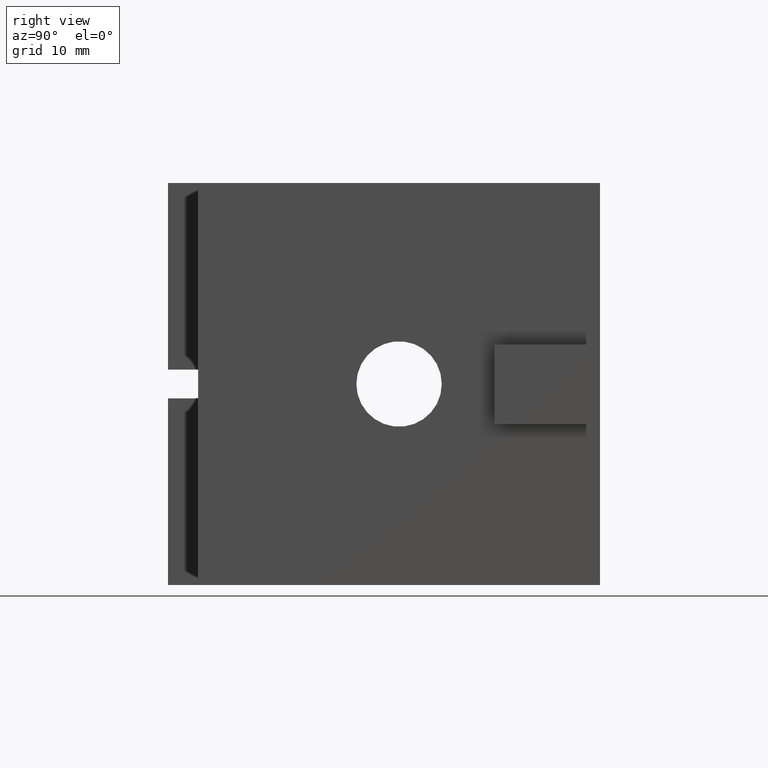
[diagram: clean part render]
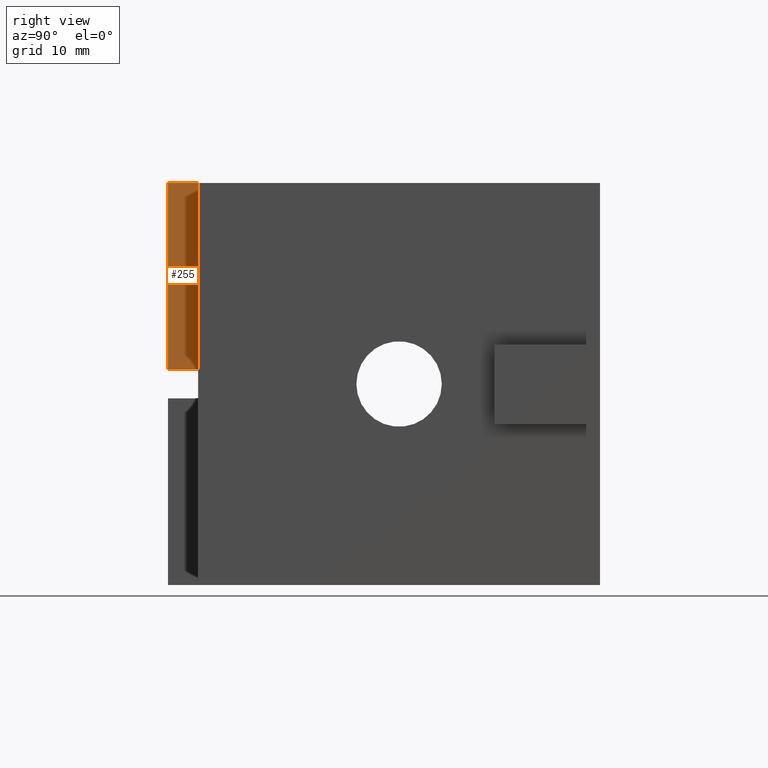
[diagram: same view with one face highlighted and labeled with its STEP entity id]
A machine part, right view. The second image highlights one B-rep face of the part: STEP entity #255.
In plain terms, the highlighted planar face has unit normal (1, 0, 0).
Its self-contained STEP definition (entity closure, byte-faithful):
#168=CARTESIAN_POINT('',(3.999999111983840,-22.999999333988058,21.436135902726068));
#169=VERTEX_POINT('',#168);
#177=CARTESIAN_POINT('',(3.999999111983840,-22.999999333988058,39.999989209840351));
#178=VERTEX_POINT('',#177);
#179=CARTESIAN_POINT('',(3.999999111983840,-22.999999333988058,21.436135902726068));
#180=DIRECTION('',(0.0,0.0,1.0));
#181=VECTOR('',#180,18.563853307114282);
#182=LINE('',#179,#181);
#183=EDGE_CURVE('',#169,#178,#182,.T.);
#225=CARTESIAN_POINT('',(3.999999111983840,-22.999999333988058,0.0));
#226=DIRECTION('',(1.0,0.0,0.0));
#227=DIRECTION('',(0.0,1.0,0.0));
#228=AXIS2_PLACEMENT_3D('',#225,#226,#227);
#229=PLANE('',#228);
#230=ORIENTED_EDGE('',*,*,#183,.F.);
#231=CARTESIAN_POINT('',(3.999999111983840,-20.000000000000057,21.436135902726068));
#232=VERTEX_POINT('',#231);
#233=CARTESIAN_POINT('',(3.999999111983840,-22.999999333988058,21.436135902726079));
#234=DIRECTION('',(0.0,1.0,0.0));
#235=VECTOR('',#234,2.999999333988001);
#236=LINE('',#233,#235);
#237=EDGE_CURVE('',#169,#232,#236,.T.);
#238=ORIENTED_EDGE('',*,*,#237,.T.);
#239=CARTESIAN_POINT('',(3.999999111983840,-20.000000000000057,39.999989209840351));
#240=VERTEX_POINT('',#239);
#241=CARTESIAN_POINT('',(3.999999111983840,-20.000000000000057,21.436135902726068));
#242=DIRECTION('',(0.0,0.0,1.0));
#243=VECTOR('',#242,18.563853307114282);
#244=LINE('',#241,#243);
#245=EDGE_CURVE('',#232,#240,#244,.T.);
#246=ORIENTED_EDGE('',*,*,#245,.T.);
#247=CARTESIAN_POINT('',(3.999999111983840,-22.999999333988058,39.999989209840351));
#248=DIRECTION('',(0.0,1.0,0.0));
#249=VECTOR('',#248,2.999999333988001);
#250=LINE('',#247,#249);
#251=EDGE_CURVE('',#178,#240,#250,.T.);
#252=ORIENTED_EDGE('',*,*,#251,.F.);
#253=EDGE_LOOP('',(#230,#238,#246,#252));
#254=FACE_OUTER_BOUND('',#253,.T.);
#255=ADVANCED_FACE('',(#254),#229,.T.);